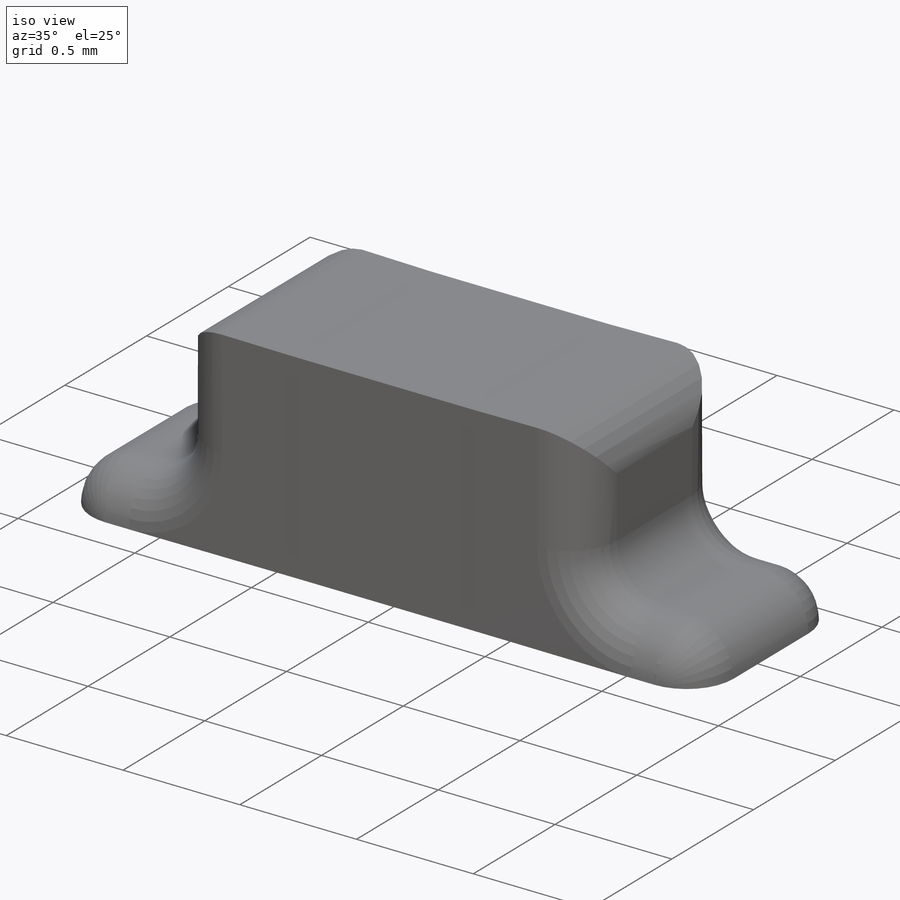
[diagram: iso view]
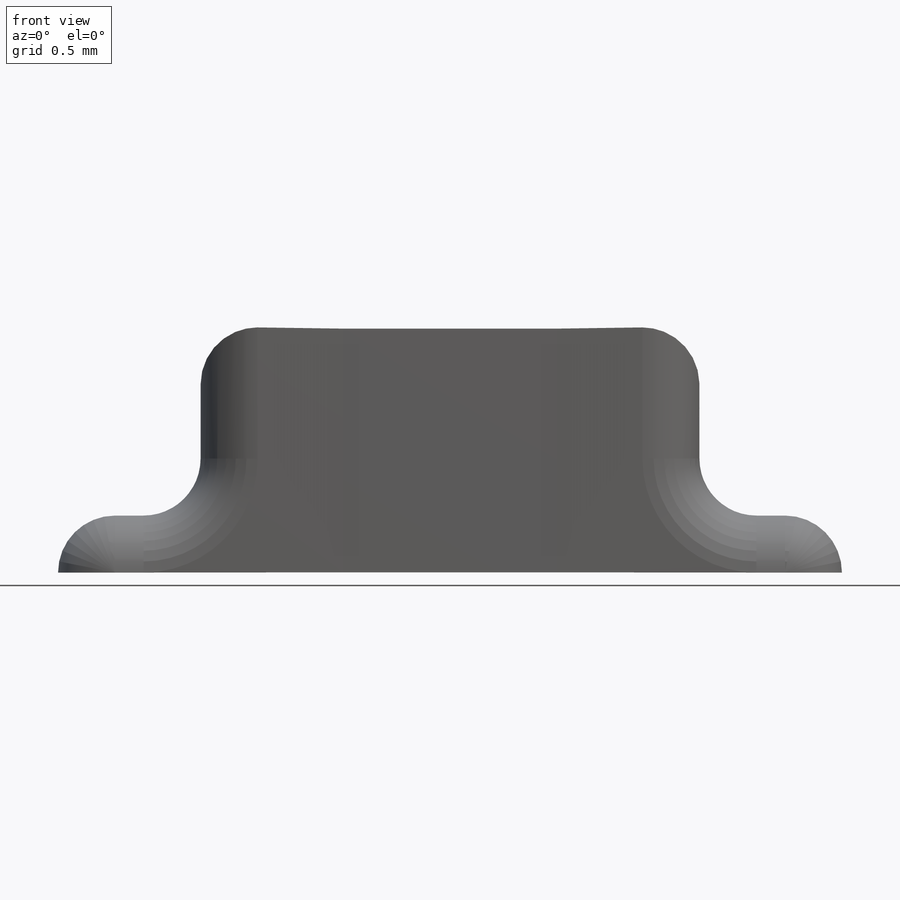
[diagram: front view]
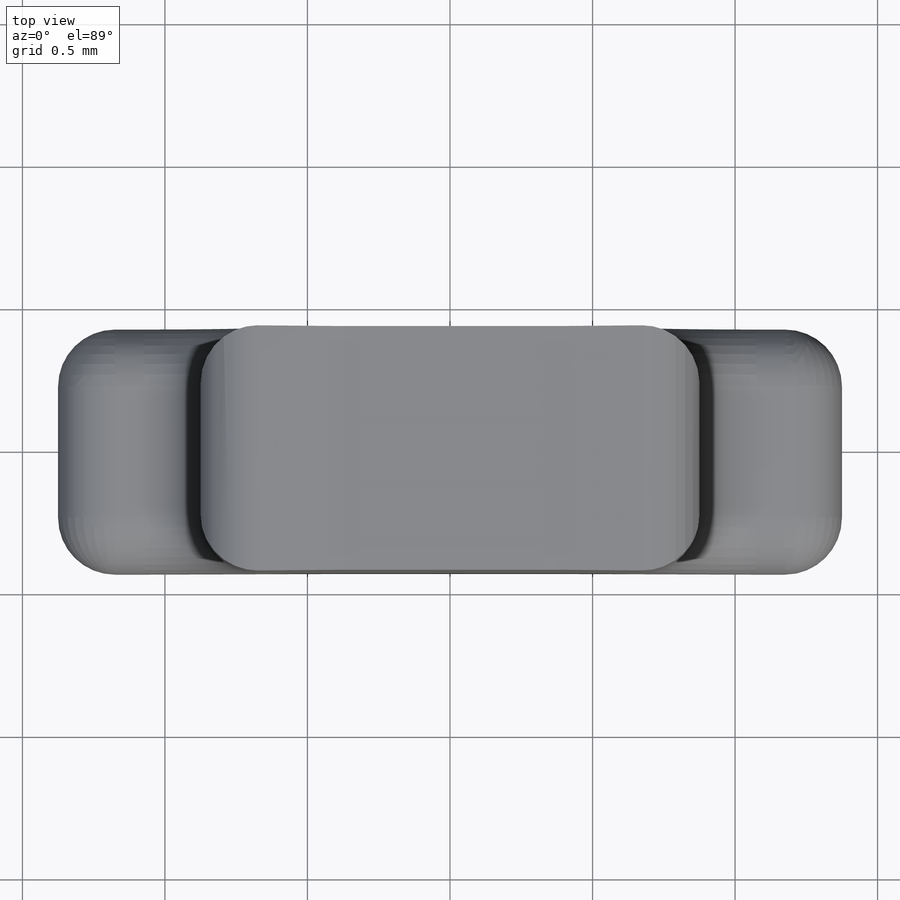
[diagram: top view]
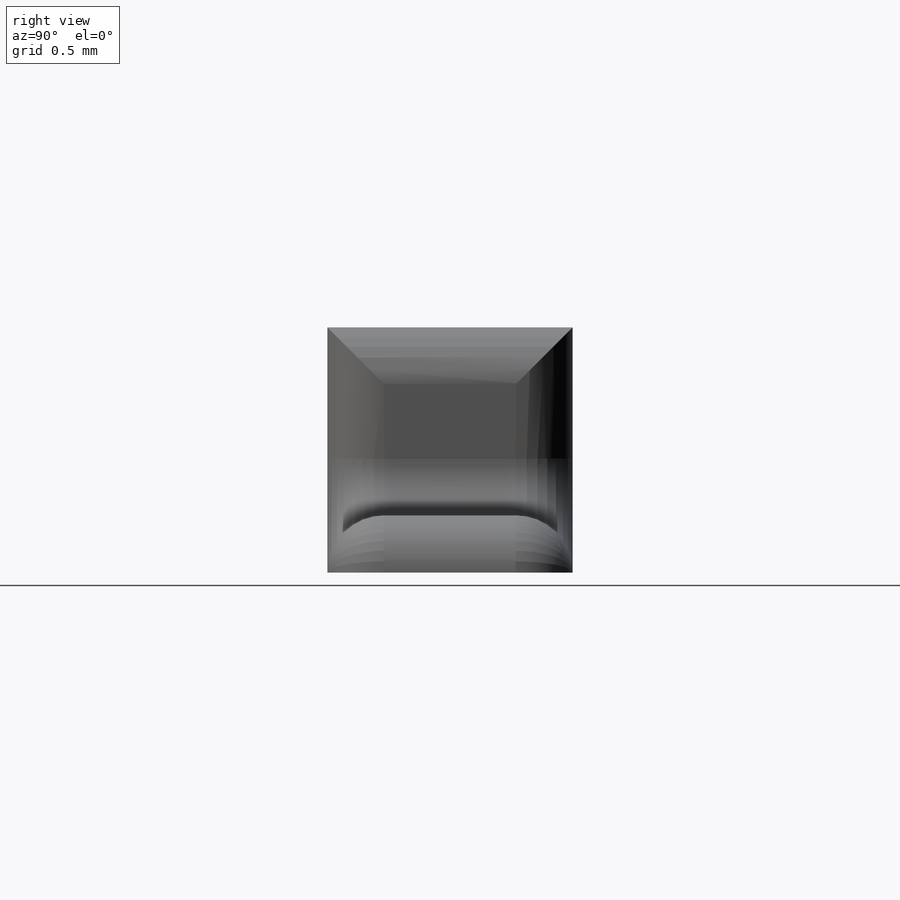
[diagram: right view]
SOLIDWORKS PART (.sldprt)
format: sldprt  version: not decoded by parser v0  size: 285,184 bytes
history: native  units: mm
features: sketch x3, extrude x3, fillet x2, material x1, mirror x1 (+13 scaffold rows collapsed)
feature tree (23):
  scaffold x13  (default folders/planes/origin — collapsed)
  material  "Material <not specified>"
  sketch  "Sketch1"  dims[D1=0.85mm D2=0.85mm D3=0.0mm]
  extrude  "Boss-Extrude1"  Depth=0.75mm
  sketch  "Sketch3"  dims[D1=0.86mm D2=0.86mm D3=0.0mm]
  extrude  "Boss-Extrude3"  Depth=0.5mm
  sketch  "Sketch4"  dims[D1=0.2mm]
  extrude  "Boss-Extrude4"  Depth=0.5mm
  fillet  "Fillet1"  Radius=0.2mm
  fillet  "Fillet2"  Radius=0.2mm
  mirror  "Mirror1"
decode coverage: 8 of 9 modeling features carry decoded parameters
note: suppression state not decoded; provenance and decode notes live in map.json
